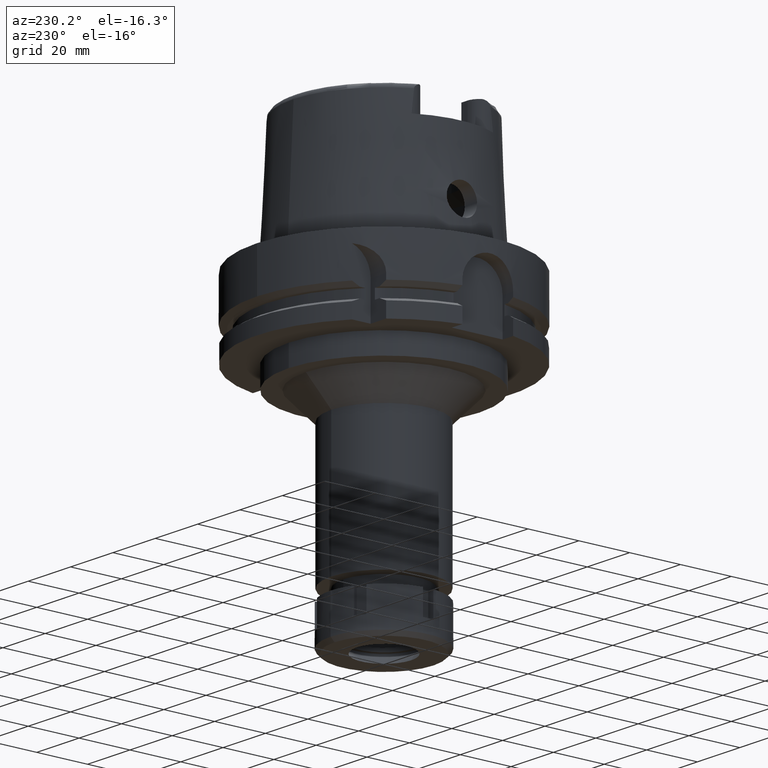
[diagram: clean part render]
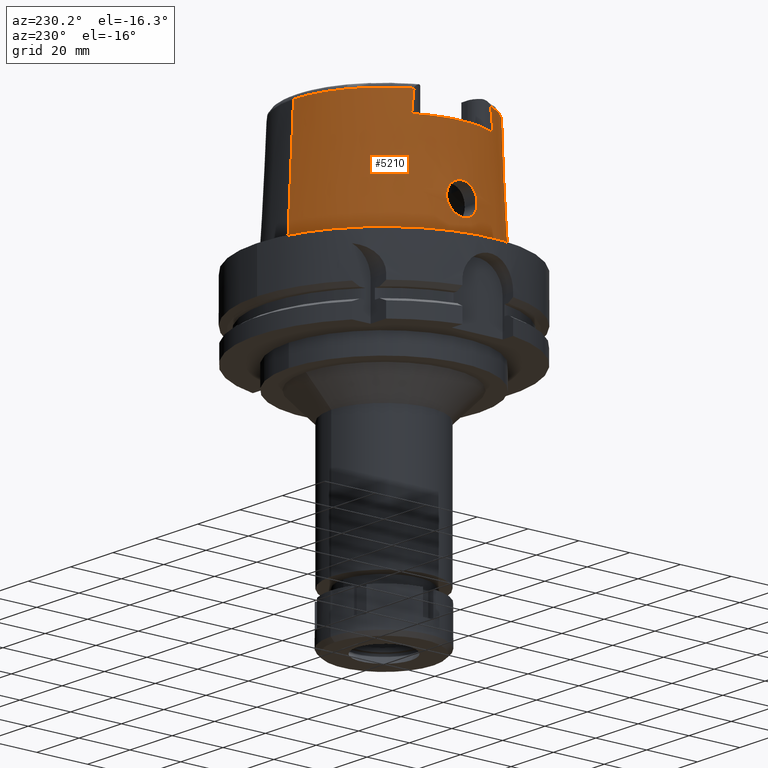
[diagram: same view with one face highlighted and labeled with its STEP entity id]
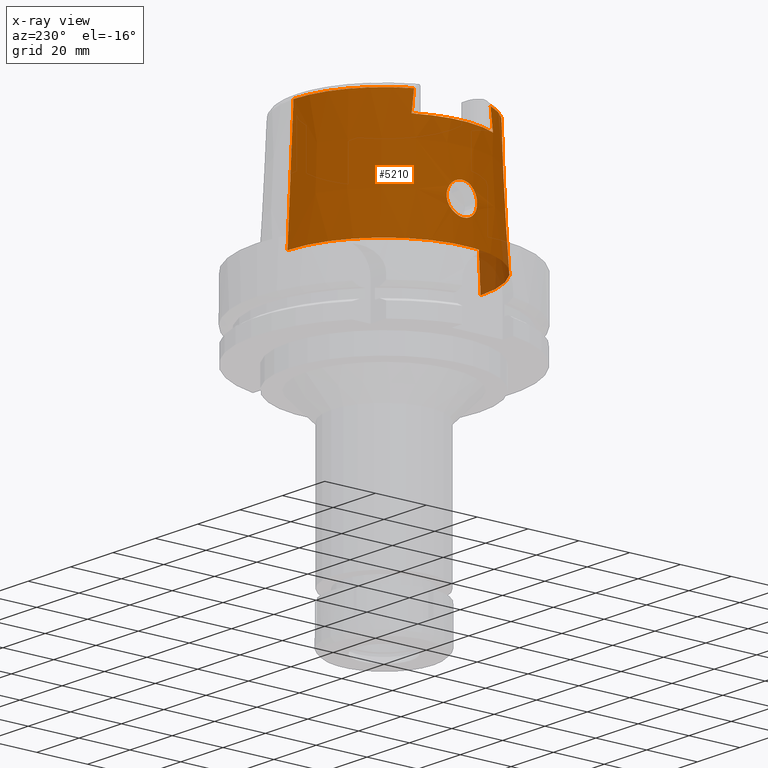
[diagram: x-ray of the same camera — body ghosted, the highlighted face saturated]
A machine part, auxiliary view. The second image highlights one B-rep face of the part: STEP entity #5210.
The next image is the same camera in x-ray: the body ghosted, the highlighted face saturated — about 4% of this face is hidden behind the body in this view.
In plain terms, the highlighted conical surface has half-angle 2.862 deg.
Its self-contained STEP definition (entity closure, byte-faithful):
#26 = CARTESIAN_POINT ( 'NONE',  ( -36.74213708003134116, 5.980920663482023336, 15.48771363178665084 ) ) ;
#28 = CARTESIAN_POINT ( 'NONE',  ( -36.82970815927703967, -3.673721649728069583, 19.74484231617102736 ) ) ;
#55 = CARTESIAN_POINT ( 'NONE',  ( -36.78115874342748981, 6.000634369571622884, 14.65218513828709312 ) ) ;
#58 = CARTESIAN_POINT ( 'NONE',  ( -36.94998175923000616, -0.7276035219041900870, 21.00000000000000000 ) ) ;
#84 = CARTESIAN_POINT ( 'NONE',  ( -36.75842919226395367, 5.999114145356266192, 15.10580503819791254 ) ) ;
#86 = CARTESIAN_POINT ( 'NONE',  ( -36.84417152423974784, -3.433603650977547606, 19.92136195242348506 ) ) ;
#112 = CARTESIAN_POINT ( 'NONE',  ( -36.72427171143733915, 5.401009150144898463, 17.61475386208541138 ) ) ;
#116 = CARTESIAN_POINT ( 'NONE',  ( -36.79206738448947078, -4.273194850286613722, 19.21188298289061436 ) ) ;
#148 = CARTESIAN_POINT ( 'NONE',  ( -36.82497142898998987, -3.751357537422829846, 19.68370323477672912 ) ) ;
#158 = CARTESIAN_POINT ( 'NONE',  ( 0.0000000000000000000, 0.0000000000000000000, 40.00000000000000000 ) ) ;
#172 = CARTESIAN_POINT ( 'NONE',  ( -0.002482252536761000127, -35.59494263424999616, 48.09987853799000135 ) ) ;
#210 = CARTESIAN_POINT ( 'NONE',  ( -32.25000000000000000, -15.68478779056467509, 42.78313258956232801 ) ) ;
#236 = CARTESIAN_POINT ( 'NONE',  ( -37.21678401652170720, 4.268596432465252555, 10.78345676034550138 ) ) ;
#368 = CARTESIAN_POINT ( 'NONE',  ( -37.55000165825001091, -0.3718891627302882141, 8.999999999999992895 ) ) ;
#396 = CARTESIAN_POINT ( 'NONE',  ( 1.065814103639999922E-14, -35.59494289391000166, 48.09987853799000135 ) ) ;
#398 = CARTESIAN_POINT ( 'NONE',  ( -36.90246391374932244, 2.270970271664929818, 20.55362381926235216 ) ) ;
#411 = CARTESIAN_POINT ( 'NONE',  ( -32.24999876011999334, -15.99794043148000000, 40.00000000000000000 ) ) ;
#425 = CARTESIAN_POINT ( 'NONE',  ( -36.91472616955542918, 1.953232796312508235, 20.67483732268593499 ) ) ;
#427 = CARTESIAN_POINT ( 'NONE',  ( -37.00698066079431214, -5.324877644454943493, 12.23314430673175046 ) ) ;
#442 = AXIS2_PLACEMENT_3D ( 'NONE', #2439, #1375, #3844 ) ;
#457 = CARTESIAN_POINT ( 'NONE',  ( -36.90702374694936339, 5.697836500260557102, 13.11707736151904768 ) ) ;
#461 = CARTESIAN_POINT ( 'NONE',  ( -37.23677011211478316, -4.145975722278929965, 10.66267860536039969 ) ) ;
#485 = CARTESIAN_POINT ( 'NONE',  ( -36.71608518142718935, 5.811444754284602610, 16.54267624456165464 ) ) ;
#513 = CARTESIAN_POINT ( 'NONE',  ( -37.03006260690557383, 5.228554669404830157, 12.05491327019708159 ) ) ;
#546 = CARTESIAN_POINT ( 'NONE',  ( -36.80179043546230133, 4.126922292612424492, 19.35577222741581238 ) ) ;
#549 = CARTESIAN_POINT ( 'NONE',  ( -36.86765356401599547, -3.023680857221861640, 20.18621613375399093 ) ) ;
#573 = CARTESIAN_POINT ( 'NONE',  ( -36.71926543743013127, 5.538662483580732321, 17.30724417046759456 ) ) ;
#576 = CARTESIAN_POINT ( 'NONE',  ( -36.76536378192928112, -5.999953328923798956, 14.96645035581262562 ) ) ;
#607 = CARTESIAN_POINT ( 'NONE',  ( -36.71847940336495952, -5.566960655756823861, 17.23812973715742203 ) ) ;
#613 = VERTEX_POINT ( 'NONE', #396 ) ;
#625 = FACE_OUTER_BOUND ( 'NONE', #2305, .T. ) ;
#637 = EDGE_CURVE ( 'NONE', #2660, #3867, #5043, .T. ) ;
#710 = B_SPLINE_CURVE_WITH_KNOTS ( 'NONE', 3,
 ( #4632, #4147, #4052, #1264, #3139, #2240, #425, #2731, #4994, #4599, #398, #4115, #2271, #1779, #6014, #1502, #5609, #1936, #2828, #4691, #2926, #3827, #5671, #2859, #5272, #1471, #2364, #546, #2450, #1072, #3346, #4318, #4235, #5730, #3374, #5154, #4290, #112, #2888, #2422, #4660, #3796, #4262, #573, #1011, #485, #956, #3858, #26, #1903, #5213, #84, #1532, #5239, #55, #1992, #1959, #3406, #4747, #457, #2333, #4204, #2393, #5643, #1045, #4779, #1416, #5522, #3288, #5701, #513, #1871, #3739, #3767, #1446, #3316, #5183, #4717, #985, #2518, #4872, #2546, #3985, #5854, #236, #1591, #1649, #2953, #4411, #4924, #1622, #2602, #2147, #1138, #4440, #2117, #3045, #4471, #2055, #3527, #2984 ),
 .UNSPECIFIED., .F., .F.,
 ( 4, 2, 2, 1, 1, 1, 1, 2, 2, 2, 2, 1, 1, 2, 2, 2, 1, 1, 1, 2, 2, 2, 2, 2, 1, 1, 2, 2, 2, 2, 1, 1, 2, 2, 2, 2, 2, 1, 1, 1, 2, 2, 2, 2, 1, 1, 2, 2, 2, 1, 1, 1, 2, 2, 2, 2, 2, 1, 1, 2, 2, 4 ),
 ( 0.0000000000000000000, 0.06249999999997109257, 0.09374999999995664579, 0.1093749999999494293, 0.1171874999999457656, 0.1210937499999439892, 0.1230468749999431982, 0.1240234374999429345, 0.1249999999999426570, 0.1562499999999350520, 0.1718749999999311384, 0.1796874999999293065, 0.1835937499999283629, 0.1855468749999278910, 0.1874999999999274192, 0.2187499999999206746, 0.2343749999999173161, 0.2421874999999158173, 0.2460937499999149847, 0.2480468749999147626, 0.2499999999999145128, 0.3124999999999144573, 0.3437499999999146794, 0.3593749999999145128, 0.3671874999999141242, 0.3710937499999139022, 0.3730468749999135691, 0.3749999999999131806, 0.4374999999999096278, 0.4687499999999077960, 0.4843749999999069078, 0.4921874999999066302, 0.4960937499999065192, 0.4999999999999064082, 0.5624999999999062972, 0.5937499999999060751, 0.6093749999999059641, 0.6171874999999059641, 0.6210937499999059641, 0.6230468749999060751, 0.6240234374999061862, 0.6249999999999062972, 0.6562499999999140687, 0.6718749999999179545, 0.6796874999999198419, 0.6835937499999208411, 0.6855468749999212852, 0.6874999999999217293, 0.7187499999999285016, 0.7343749999999317213, 0.7421874999999332756, 0.7460937499999341638, 0.7480468749999348299, 0.7499999999999353850, 0.8124999999999530376, 0.8437499999999618083, 0.8593749999999661382, 0.8671874999999682476, 0.8710937499999693578, 0.8730468749999698019, 0.8749999999999702460, 1.000000000000000000 ),
 .UNSPECIFIED. ) ;
#785 = CARTESIAN_POINT ( 'NONE',  ( -37.55000165825000380, 1.571614468376999917E-13, 9.000000000000000000 ) ) ;
#798 = CARTESIAN_POINT ( 'NONE',  ( -36.97177941768389076, -5.466384430734391842, 12.52551706219573902 ) ) ;
#835 = CARTESIAN_POINT ( 'NONE',  ( -37.45921998432961431, -2.267056700744098929, 9.444779204203612721 ) ) ;
#857 = ORIENTED_EDGE ( 'NONE', *, *, #4468, .F. ) ;
#859 = CARTESIAN_POINT ( 'NONE',  ( -32.25000000000000000, 15.37357338405396945, 45.48332195248026721 ) ) ;
#866 = CARTESIAN_POINT ( 'NONE',  ( -36.99058026714206449, -5.392667338631739860, 12.36624210003268587 ) ) ;
#894 = CARTESIAN_POINT ( 'NONE',  ( -37.22837700063030297, -4.198151100844063954, 10.71332522440694923 ) ) ;
#956 = CARTESIAN_POINT ( 'NONE',  ( -36.72707763824831062, 5.924706287517218506, 15.96749182868030559 ) ) ;
#960 = CARTESIAN_POINT ( 'NONE',  ( -36.71806943930015166, -5.583253525890961910, 17.19735773689056302 ) ) ;
#985 = CARTESIAN_POINT ( 'NONE',  ( -37.12650545951193237, 4.772862932131251235, 11.35873750122546788 ) ) ;
#989 = CARTESIAN_POINT ( 'NONE',  ( -36.71879680598878792, -5.555159369107776968, 17.26721057519085889 ) ) ;
#1011 = CARTESIAN_POINT ( 'NONE',  ( -36.71465593797850602, 5.697253075833943470, 16.92428247189354096 ) ) ;
#1013 = CARTESIAN_POINT ( 'NONE',  ( -36.72234695110327607, -5.429177298976620492, 17.57408257592915390 ) ) ;
#1045 = CARTESIAN_POINT ( 'NONE',  ( -36.94613635840509858, 5.562259926149883960, 12.75026490663161560 ) ) ;
#1048 = CARTESIAN_POINT ( 'NONE',  ( -36.76647508222163196, -5.999791398515839980, 14.94506806261689924 ) ) ;
#1072 = CARTESIAN_POINT ( 'NONE',  ( -36.79592132201925381, 4.215132023908788383, 19.26998986122860558 ) ) ;
#1074 = CARTESIAN_POINT ( 'NONE',  ( -36.73131779816827702, -5.964931939408380401, 15.75672676679908868 ) ) ;
#1138 = CARTESIAN_POINT ( 'NONE',  ( -37.44568971155850079, 2.428529047925400253, 9.513146786268443122 ) ) ;
#1170 = ORIENTED_EDGE ( 'NONE', *, *, #637, .T. ) ;
#1198 = CARTESIAN_POINT ( 'NONE',  ( -32.24999876011999334, -15.99794043148000000, 40.00000000000000000 ) ) ;
#1229 = CARTESIAN_POINT ( 'NONE',  ( 0.0000000000000000000, 0.0000000000000000000, 48.09987853799000135 ) ) ;
#1264 = CARTESIAN_POINT ( 'NONE',  ( -36.93380715178074070, 1.318767284406327622, 20.85656728309576025 ) ) ;
#1297 = DIRECTION ( 'NONE',  ( 0.0000000000000000000, 0.0000000000000000000, -1.000000000000000000 ) ) ;
#1328 = CARTESIAN_POINT ( 'NONE',  ( -37.06279015895903939, -5.081586767706613550, 11.80387918749896414 ) ) ;
#1360 = CARTESIAN_POINT ( 'NONE',  ( -37.27691987151867892, -3.883255638292381740, 10.42474725757036325 ) ) ;
#1369 = CARTESIAN_POINT ( 'NONE',  ( -32.25000136840999687, 15.06443227085999936, 48.09991931670000298 ) ) ;
#1375 = DIRECTION ( 'NONE',  ( 0.0000000000000000000, 0.0000000000000000000, 1.000000000000000000 ) ) ;
#1390 = CARTESIAN_POINT ( 'NONE',  ( -37.46074053503090795, -2.248188139057027968, 9.437114955106025604 ) ) ;
#1416 = CARTESIAN_POINT ( 'NONE',  ( -36.94833204979762087, 5.554272538584014818, 12.73062048098062071 ) ) ;
#1419 = CARTESIAN_POINT ( 'NONE',  ( -36.95848500219747024, -5.516798331183212056, 12.64085378710507257 ) ) ;
#1446 = CARTESIAN_POINT ( 'NONE',  ( -37.07375762289484555, 5.030618194363178475, 11.72997232595144190 ) ) ;
#1448 = CARTESIAN_POINT ( 'NONE',  ( -36.85852656653809589, -3.191919365770345518, 20.08423059641197383 ) ) ;
#1471 = CARTESIAN_POINT ( 'NONE',  ( -36.81702662342831189, 3.889211728386295697, 19.56987104263142641 ) ) ;
#1477 = CARTESIAN_POINT ( 'NONE',  ( -36.74862308198709115, -4.956056997960864408, 18.38757285394166985 ) ) ;
#1502 = CARTESIAN_POINT ( 'NONE',  ( -36.87485414132241601, 2.872868603610435834, 20.26843404570703200 ) ) ;
#1504 = CARTESIAN_POINT ( 'NONE',  ( -36.71645952759332943, -5.675355256123393310, 16.95135817563319591 ) ) ;
#1516 = CARTESIAN_POINT ( 'NONE',  ( -36.94998175923000616, 0.0000000000000000000, 21.00000000000000000 ) ) ;
#1532 = CARTESIAN_POINT ( 'NONE',  ( -36.76072782277740458, 5.999764244688070569, 15.05826013460559309 ) ) ;
#1537 = CARTESIAN_POINT ( 'NONE',  ( -36.82322159279420504, -5.928917285969003359, 14.05832086217997023 ) ) ;
#1591 = CARTESIAN_POINT ( 'NONE',  ( -37.21804406098829787, 4.261125445034912751, 10.77590154581866955 ) ) ;
#1618 = EDGE_CURVE ( 'NONE', #3867, #3950, #2564, .T. ) ;
#1622 = CARTESIAN_POINT ( 'NONE',  ( -37.42163608548830211, 2.690728687920960649, 9.636374340044181253 ) ) ;
#1649 = CARTESIAN_POINT ( 'NONE',  ( -37.27310248660137404, 3.933601523717860982, 10.44705200904945563 ) ) ;
#1690 = CIRCLE ( 'NONE', #5607, 35.99995025243999436 ) ;
#1695 = B_SPLINE_CURVE_WITH_KNOTS ( 'NONE', 3,
 ( #3203, #368, #3712, #5955, #4602, #5491, #3170, #5580, #2733, #1781, #1390, #3741, #835, #2764, #3260, #2242, #2707, #4576, #1360, #4665, #4118, #461, #1755, #894, #2679, #5552, #5088, #3140, #4634, #3233, #5521, #5061, #1328, #4997, #427, #866, #798, #4781, #1419, #4751, #4238, #5215, #1537, #5242, #3408, #4293, #5274, #4811, #3798, #1048, #576, #5703, #1074, #4720, #2928, #5646, #1504, #2957, #960, #607, #2367, #989, #2831, #1013, #5673, #1477, #5186, #3349, #2893, #1963, #4264, #5157, #2028, #2455, #116, #4321, #2484, #148, #28, #5733, #86, #1448, #549, #1995, #4351, #4693, #2395, #2424, #3860, #3830, #58, #5611 ),
 .UNSPECIFIED., .F., .F.,
 ( 4, 2, 2, 1, 1, 1, 1, 2, 2, 2, 2, 2, 1, 1, 1, 2, 2, 2, 2, 2, 2, 1, 1, 2, 2, 2, 2, 2, 1, 2, 2, 2, 2, 1, 1, 1, 1, 2, 2, 2, 2, 2, 1, 1, 2, 2, 2, 2, 2, 2, 1, 1, 2, 2, 4 ),
 ( 0.0000000000000000000, 0.06249999999999257538, 0.09374999999998887001, 0.1093749999999869826, 0.1171874999999860112, 0.1210937499999855116, 0.1230468749999853312, 0.1240234374999852202, 0.1249999999999851230, 0.1874999999999879818, 0.2187499999999894251, 0.2343749999999901745, 0.2421874999999905909, 0.2460937499999907574, 0.2480468749999908129, 0.2490234374999909517, 0.2499999999999910627, 0.2812500000000001110, 0.2968750000000046629, 0.3125000000000091593, 0.3437500000000182632, 0.3593750000000227041, 0.3671875000000250355, 0.3710937500000263123, 0.3750000000000275335, 0.4375000000000488498, 0.4687500000000596190, 0.4843750000000651146, 0.4921875000000679456, 0.4960937500000693334, 0.5000000000000707212, 0.5625000000000939249, 0.5937500000001055822, 0.6093750000001113554, 0.6171875000001145750, 0.6210937500001163514, 0.6230468750001172396, 0.6240234375001174616, 0.6250000000001176836, 0.6875000000000980327, 0.7187500000000882627, 0.7343750000000832667, 0.7421875000000810463, 0.7460937500000799361, 0.7480468750000793809, 0.7500000000000787148, 0.7812500000000688338, 0.7968750000000637268, 0.8125000000000587308, 0.8437500000000480727, 0.8593750000000428546, 0.8671875000000404121, 0.8710937500000391909, 0.8750000000000379696, 1.000000000000000000 ),
 .UNSPECIFIED. ) ;
#1698 = CARTESIAN_POINT ( 'NONE',  ( 0.0000000000000000000, 38.00001658251999714, 1.023181539494999863E-12 ) ) ;
#1753 = DIRECTION ( 'NONE',  ( -0.9060276961631030801, 0.4232183996300014628, 0.0000000000000000000 ) ) ;
#1755 = CARTESIAN_POINT ( 'NONE',  ( -37.23090673957359797, -4.182514433654384689, 10.69803016623830771 ) ) ;
#1779 = CARTESIAN_POINT ( 'NONE',  ( -36.89521753929933112, 2.446011855748357888, 20.48120491926509601 ) ) ;
#1781 = CARTESIAN_POINT ( 'NONE',  ( -37.46214807647906753, -2.230613678740583250, 9.430023174824837540 ) ) ;
#1871 = CARTESIAN_POINT ( 'NONE',  ( -37.04826500278484502, 5.147778768191037635, 11.91727333387864896 ) ) ;
#1903 = CARTESIAN_POINT ( 'NONE',  ( -36.74765037912664667, 5.991458756198568381, 15.34410716257145424 ) ) ;
#1936 = CARTESIAN_POINT ( 'NONE',  ( -36.86288654082656535, 3.101924623793958169, 20.13623923886805045 ) ) ;
#1959 = CARTESIAN_POINT ( 'NONE',  ( -36.85211507429026057, 5.861065642222700767, 13.70152380353212429 ) ) ;
#1963 = CARTESIAN_POINT ( 'NONE',  ( -36.77996768913134673, -4.459867724273532730, 19.01405825153331008 ) ) ;
#1992 = CARTESIAN_POINT ( 'NONE',  ( -36.80567151133607240, 5.969104826479818549, 14.27728902634337871 ) ) ;
#1995 = CARTESIAN_POINT ( 'NONE',  ( -36.88067951415136037, -2.761362253195626781, 20.32773398685701949 ) ) ;
#2010 = DIRECTION ( 'NONE',  ( -5.154182075159067383E-05, 0.04993927430816067631, -0.9987522546783135224 ) ) ;
#2028 = CARTESIAN_POINT ( 'NONE',  ( -36.79001039947167584, -4.304835402697857027, 19.17954527391021813 ) ) ;
#2055 = CARTESIAN_POINT ( 'NONE',  ( -37.51912319094906678, 1.534347120026018141, 9.142235612153992719 ) ) ;
#2072 = EDGE_CURVE ( 'NONE', #3653, #2675, #1690, .T. ) ;
#2079 = VECTOR ( 'NONE', #3426, 1000.000000000000227 ) ;
#2117 = CARTESIAN_POINT ( 'NONE',  ( -37.45410411989075783, 2.329149396799384597, 9.470517360948258911 ) ) ;
#2147 = CARTESIAN_POINT ( 'NONE',  ( -37.44036248521585009, 2.488670637046051848, 9.540284758766304662 ) ) ;
#2240 = CARTESIAN_POINT ( 'NONE',  ( -36.91965437026263430, 1.806480541533576512, 20.72250036075014634 ) ) ;
#2242 = CARTESIAN_POINT ( 'NONE',  ( -37.34545887985616730, -3.377054693507359318, 10.03675207813765979 ) ) ;
#2271 = CARTESIAN_POINT ( 'NONE',  ( -36.90165294930666562, 2.290668940777149665, 20.54552628360226052 ) ) ;
#2305 = EDGE_LOOP ( 'NONE', ( #3071, #1170, #2547, #5634, #4167, #3172, #4377, #3187 ) ) ;
#2308 = AXIS2_PLACEMENT_3D ( 'NONE', #6065, #4737, #2350 ) ;
#2333 = CARTESIAN_POINT ( 'NONE',  ( -36.92226254184715373, 5.646522235184992411, 12.97035193712977197 ) ) ;
#2350 = DIRECTION ( 'NONE',  ( 0.0000000000000000000, -1.000000000000000000, 0.0000000000000000000 ) ) ;
#2364 = CARTESIAN_POINT ( 'NONE',  ( -36.81000017271533409, 4.000898972940268195, 19.47322790999004383 ) ) ;
#2367 = CARTESIAN_POINT ( 'NONE',  ( -36.71866811050522017, -5.559891426319853558, 17.25558124127200443 ) ) ;
#2393 = CARTESIAN_POINT ( 'NONE',  ( -36.93936329012350939, 5.586693184667166356, 12.81137741697505561 ) ) ;
#2395 = CARTESIAN_POINT ( 'NONE',  ( -36.89712677444816080, -2.398165150328999573, 20.49994954947837300 ) ) ;
#2422 = CARTESIAN_POINT ( 'NONE',  ( -36.72102410496681557, 5.484242177747206348, 17.43441782935495965 ) ) ;
#2424 = CARTESIAN_POINT ( 'NONE',  ( -36.89910394019696582, -2.351659802671087540, 20.51999432133411716 ) ) ;
#2439 = CARTESIAN_POINT ( 'NONE',  ( 0.0000000000000000000, 0.0000000000000000000, 1.023181539494999863E-12 ) ) ;
#2450 = CARTESIAN_POINT ( 'NONE',  ( -36.79768251398044754, 4.188835919582126976, 19.29589494911641623 ) ) ;
#2455 = CARTESIAN_POINT ( 'NONE',  ( -36.79131498553528701, -4.284763963187011804, 19.20011956029349420 ) ) ;
#2484 = CARTESIAN_POINT ( 'NONE',  ( -36.81089043437773967, -3.979595105193344473, 19.49464795716744447 ) ) ;
#2518 = CARTESIAN_POINT ( 'NONE',  ( -37.16134170527265468, 4.585504208506023360, 11.12922431000617962 ) ) ;
#2546 = CARTESIAN_POINT ( 'NONE',  ( -37.19923292998166886, 4.371638877399492529, 10.88988554076843052 ) ) ;
#2547 = ORIENTED_EDGE ( 'NONE', *, *, #1618, .T. ) ;
#2564 = LINE ( 'NONE', #4333, #3298 ) ;
#2602 = CARTESIAN_POINT ( 'NONE',  ( -37.42938503966876596, 2.609482079713338898, 9.596437147966748071 ) ) ;
#2660 = VERTEX_POINT ( 'NONE', #1369 ) ;
#2675 = VERTEX_POINT ( 'NONE', #4355 ) ;
#2679 = CARTESIAN_POINT ( 'NONE',  ( -37.22668676022431811, -4.208570270472985264, 10.72355409531292025 ) ) ;
#2707 = CARTESIAN_POINT ( 'NONE',  ( -37.32405169016085722, -3.545458941573749634, 10.15480193131925191 ) ) ;
#2731 = CARTESIAN_POINT ( 'NONE',  ( -36.90831319043002878, 2.124409086131613833, 20.61174563227799439 ) ) ;
#2733 = CARTESIAN_POINT ( 'NONE',  ( -37.46539339602350793, -2.189567561845902510, 9.413685638568191294 ) ) ;
#2764 = CARTESIAN_POINT ( 'NONE',  ( -37.43522507132681199, -2.562855269052522367, 9.565775918734312100 ) ) ;
#2828 = CARTESIAN_POINT ( 'NONE',  ( -36.85909534675823807, 3.172167758265809212, 20.09341281341699670 ) ) ;
#2831 = CARTESIAN_POINT ( 'NONE',  ( -36.71887644515832250, -5.552292536330343253, 17.27421908815856355 ) ) ;
#2859 = CARTESIAN_POINT ( 'NONE',  ( -36.84040625807504199, 3.503059450715749090, 19.87517500637374468 ) ) ;
#2888 = CARTESIAN_POINT ( 'NONE',  ( -36.72203940115641529, 5.457104329616732308, 17.49438804829725669 ) ) ;
#2893 = CARTESIAN_POINT ( 'NONE',  ( -36.77286751706097334, -4.570165826772733197, 18.88920549401498761 ) ) ;
#2909 = EDGE_CURVE ( 'NONE', #3685, #4923, #710, .T. ) ;
#2922 = B_SPLINE_CURVE_WITH_KNOTS ( 'NONE', 3,
 ( #1198, #210, #3467, #5391 ),
 .UNSPECIFIED., .F., .F.,
 ( 4, 4 ),
 ( 0.0000000000000000000, 1.000000000000000000 ),
 .UNSPECIFIED. ) ;
#2926 = CARTESIAN_POINT ( 'NONE',  ( -36.85245578580056502, 3.291379239472637774, 20.01667516327843543 ) ) ;
#2928 = CARTESIAN_POINT ( 'NONE',  ( -36.71772356593751141, -5.806511242207025525, 16.52438348768006904 ) ) ;
#2940 = DIRECTION ( 'NONE',  ( 0.0000000000000000000, -1.000000000000000000, 0.0000000000000000000 ) ) ;
#2942 = EDGE_CURVE ( 'NONE', #3653, #4909, #2922, .T. ) ;
#2953 = CARTESIAN_POINT ( 'NONE',  ( -37.31960196068958879, 3.599715197338668737, 10.18348878050270656 ) ) ;
#2957 = CARTESIAN_POINT ( 'NONE',  ( -36.71737092155365900, -5.615031271995241546, 17.11561201904546436 ) ) ;
#2984 = CARTESIAN_POINT ( 'NONE',  ( -37.55000165825000380, 1.571614468376999917E-13, 9.000000000000000000 ) ) ;
#3041 = LINE ( 'NONE', #172, #2079 ) ;
#3045 = CARTESIAN_POINT ( 'NONE',  ( -37.45574528164588912, 2.309354411066905310, 9.462220898927860446 ) ) ;
#3071 = ORIENTED_EDGE ( 'NONE', *, *, #5897, .F. ) ;
#3139 = CARTESIAN_POINT ( 'NONE',  ( -36.92875258695283947, 1.513458730394577234, 20.80955867293651806 ) ) ;
#3140 = CARTESIAN_POINT ( 'NONE',  ( -37.17910272638567903, -4.492517266282609611, 11.01802042201667930 ) ) ;
#3164 = EDGE_CURVE ( 'NONE', #613, #3539, #3041, .T. ) ;
#3170 = CARTESIAN_POINT ( 'NONE',  ( -37.48377488592331730, -1.942288517216233190, 9.321523430673265054 ) ) ;
#3172 = ORIENTED_EDGE ( 'NONE', *, *, #5070, .T. ) ;
#3187 = ORIENTED_EDGE ( 'NONE', *, *, #2072, .T. ) ;
#3203 = CARTESIAN_POINT ( 'NONE',  ( -37.55000165825000380, 1.571614468376999917E-13, 9.000000000000000000 ) ) ;
#3233 = CARTESIAN_POINT ( 'NONE',  ( -37.13270875439160790, -4.742370940834817361, 11.32309422934290133 ) ) ;
#3260 = CARTESIAN_POINT ( 'NONE',  ( -37.40392386327348362, -2.880953460754754669, 9.722366012671125546 ) ) ;
#3288 = CARTESIAN_POINT ( 'NONE',  ( -36.98564165150888527, 5.414376625352776529, 12.40705189659201935 ) ) ;
#3298 = VECTOR ( 'NONE', #2010, 1000.000000000000227 ) ;
#3307 = CONICAL_SURFACE ( 'NONE', #6048, 36.79747973821000073, 0.04996004983832824653 ) ;
#3316 = CARTESIAN_POINT ( 'NONE',  ( -37.07704877847563552, 5.015131555271890029, 11.70627021602903284 ) ) ;
#3346 = CARTESIAN_POINT ( 'NONE',  ( -36.79474704867105572, 4.232609471241222998, 19.25266604119527969 ) ) ;
#3349 = CARTESIAN_POINT ( 'NONE',  ( -36.76841115256122805, -4.639906166534255583, 18.80560553096219323 ) ) ;
#3374 = CARTESIAN_POINT ( 'NONE',  ( -36.73723531059630432, 5.138910993510313219, 18.10319557330759821 ) ) ;
#3406 = CARTESIAN_POINT ( 'NONE',  ( -36.86920866379021078, 5.814938421963117499, 13.50741653441596846 ) ) ;
#3408 = CARTESIAN_POINT ( 'NONE',  ( -36.79040363443451156, -5.982412805353677143, 14.53134241299937912 ) ) ;
#3426 = DIRECTION ( 'NONE',  ( 5.154182075151068004E-05, -0.04993927430816067631, -0.9987522546783135224 ) ) ;
#3467 = CARTESIAN_POINT ( 'NONE',  ( -32.25000000000000000, -15.37363593576801257, 45.48304329635233501 ) ) ;
#3527 = CARTESIAN_POINT ( 'NONE',  ( -37.55000165825000380, 0.7490232804582529491, 9.000000000000017764 ) ) ;
#3539 = VERTEX_POINT ( 'NONE', #4249 ) ;
#3576 = AXIS2_PLACEMENT_3D ( 'NONE', #1229, #1297, #1753 ) ;
#3653 = VERTEX_POINT ( 'NONE', #411 ) ;
#3685 = VERTEX_POINT ( 'NONE', #1516 ) ;
#3712 = CARTESIAN_POINT ( 'NONE',  ( -37.54240575604766406, -0.7521153722526756624, 9.034676255605903705 ) ) ;
#3739 = CARTESIAN_POINT ( 'NONE',  ( -37.05758684895381094, 5.105731772488886655, 11.84772253554631583 ) ) ;
#3741 = CARTESIAN_POINT ( 'NONE',  ( -37.45979846512887690, -2.259900654932927466, 9.441862815552726218 ) ) ;
#3767 = CARTESIAN_POINT ( 'NONE',  ( -37.06884847055233934, 5.053621854395571766, 11.76545393853709598 ) ) ;
#3796 = CARTESIAN_POINT ( 'NONE',  ( -36.71962191413464893, 5.526942422403049449, 17.33517078317796489 ) ) ;
#3798 = CARTESIAN_POINT ( 'NONE',  ( -36.76887443617886220, -5.999204695319567904, 14.89971357467235613 ) ) ;
#3827 = CARTESIAN_POINT ( 'NONE',  ( -36.85109903874094783, 3.315399909343513585, 20.00083297391656956 ) ) ;
#3830 = CARTESIAN_POINT ( 'NONE',  ( -36.93367461911356742, -1.520528897212044539, 20.86597660907410656 ) ) ;
#3844 = DIRECTION ( 'NONE',  ( 0.0000000000000000000, 1.000000000000000000, 0.0000000000000000000 ) ) ;
#3858 = CARTESIAN_POINT ( 'NONE',  ( -36.73221655579671108, 5.952817312800082306, 15.77528853881286430 ) ) ;
#3860 = CARTESIAN_POINT ( 'NONE',  ( -36.90004114262342938, -2.329381205907544050, 20.52943830534962544 ) ) ;
#3867 = VERTEX_POINT ( 'NONE', #4456 ) ;
#3950 = VERTEX_POINT ( 'NONE', #1698 ) ;
#3985 = CARTESIAN_POINT ( 'NONE',  ( -37.20946705602678151, 4.311801555755056192, 10.82753860088256559 ) ) ;
#4052 = CARTESIAN_POINT ( 'NONE',  ( -36.94593810736768091, 0.7403763698833654150, 20.96707238085064517 ) ) ;
#4115 = CARTESIAN_POINT ( 'NONE',  ( -36.90196240614530154, 2.283174416767193460, 20.54861767319427202 ) ) ;
#4118 = CARTESIAN_POINT ( 'NONE',  ( -37.24833945055777917, -4.072703394236847352, 10.59331636203001814 ) ) ;
#4147 = CARTESIAN_POINT ( 'NONE',  ( -36.94998175923001327, 0.3625556862184972640, 21.00000000000000000 ) ) ;
#4167 = ORIENTED_EDGE ( 'NONE', *, *, #3164, .F. ) ;
#4204 = CARTESIAN_POINT ( 'NONE',  ( -36.93003310196935729, 5.619791131382732452, 12.89696802786769858 ) ) ;
#4230 = CARTESIAN_POINT ( 'NONE',  ( -32.25000000000000000, 15.68473281738396885, 42.78334884691359719 ) ) ;
#4235 = CARTESIAN_POINT ( 'NONE',  ( -36.77255812651438305, 4.560787639215094558, 18.92339893918521199 ) ) ;
#4238 = CARTESIAN_POINT ( 'NONE',  ( -36.90855853750419868, -5.701107916578003199, 13.08167443259730156 ) ) ;
#4249 = CARTESIAN_POINT ( 'NONE',  ( 0.0000000000000000000, -38.00001658251999714, 6.892264536873000076E-13 ) ) ;
#4262 = CARTESIAN_POINT ( 'NONE',  ( -36.71936753119718588, 5.535258965271261822, 17.31538837229319228 ) ) ;
#4264 = CARTESIAN_POINT ( 'NONE',  ( -36.78362168149674005, -4.403297247335943077, 19.07634702706458540 ) ) ;
#4290 = CARTESIAN_POINT ( 'NONE',  ( -36.72602887549364681, 5.361186024592570654, 17.69556604211973294 ) ) ;
#4293 = CARTESIAN_POINT ( 'NONE',  ( -36.78457883131221706, -5.988946519200009533, 14.62445446583535258 ) ) ;
#4318 = CARTESIAN_POINT ( 'NONE',  ( -36.79422925822261448, 4.240294919274228747, 19.24500745552995795 ) ) ;
#4321 = CARTESIAN_POINT ( 'NONE',  ( -36.80167536630138159, -4.125522625627466411, 19.36108937374791950 ) ) ;
#4333 = CARTESIAN_POINT ( 'NONE',  ( 0.002482252536764999965, 35.59494263424999616, 48.09987853799000135 ) ) ;
#4351 = CARTESIAN_POINT ( 'NONE',  ( -36.88702635269868324, -2.627716237125233167, 20.39562777863725174 ) ) ;
#4355 = CARTESIAN_POINT ( 'NONE',  ( -32.24999999999000266, 15.99793480980999938, 40.00000000000000000 ) ) ;
#4364 = CIRCLE ( 'NONE', #442, 38.00001658251999714 ) ;
#4377 = ORIENTED_EDGE ( 'NONE', *, *, #2942, .F. ) ;
#4401 = DIRECTION ( 'NONE',  ( 0.0000000000000000000, 0.0000000000000000000, -1.000000000000000000 ) ) ;
#4411 = CARTESIAN_POINT ( 'NONE',  ( -37.37901540024436997, 3.101672283352398196, 9.860076702512275304 ) ) ;
#4440 = CARTESIAN_POINT ( 'NONE',  ( -37.45162219020419769, 2.358881670925441654, 9.483072389192008345 ) ) ;
#4456 = CARTESIAN_POINT ( 'NONE',  ( 0.0000000000000000000, 35.59494289391000166, 48.09987853799000135 ) ) ;
#4468 = EDGE_CURVE ( 'NONE', #4923, #3685, #1695, .T. ) ;
#4471 = CARTESIAN_POINT ( 'NONE',  ( -37.45640130424399672, 2.301400346840209554, 9.458906295876481352 ) ) ;
#4498 = DIRECTION ( 'NONE',  ( -0.8958345712659759874, -0.4443876921390880197, 0.0000000000000000000 ) ) ;
#4566 = CARTESIAN_POINT ( 'NONE',  ( -32.25000136840999687, 15.06443227085999936, 48.09991931670000298 ) ) ;
#4576 = CARTESIAN_POINT ( 'NONE',  ( -37.28906261278351053, -3.798730252022853637, 10.35444251675327543 ) ) ;
#4599 = CARTESIAN_POINT ( 'NONE',  ( -36.90321321349627226, 2.252661840914863323, 20.56109868250977257 ) ) ;
#4602 = CARTESIAN_POINT ( 'NONE',  ( -37.51012317168771659, -1.514943794002670652, 9.191020326267159035 ) ) ;
#4621 = CARTESIAN_POINT ( 'NONE',  ( -32.24999491821000674, -15.06448486709000001, 48.09973212036999968 ) ) ;
#4632 = CARTESIAN_POINT ( 'NONE',  ( -36.94998175923000616, 0.0000000000000000000, 21.00000000000000000 ) ) ;
#4634 = CARTESIAN_POINT ( 'NONE',  ( -37.14433642817245840, -4.681310381858185821, 11.24566233597220588 ) ) ;
#4660 = CARTESIAN_POINT ( 'NONE',  ( -36.72001609590969196, 5.514360062299606291, 17.36487741629870385 ) ) ;
#4665 = CARTESIAN_POINT ( 'NONE',  ( -37.25798618641285032, -4.009624599192505023, 10.53613804246701768 ) ) ;
#4691 = CARTESIAN_POINT ( 'NONE',  ( -36.85447695403446744, 3.255432301153368346, 20.04019703281360520 ) ) ;
#4693 = CARTESIAN_POINT ( 'NONE',  ( -36.89414025875990433, -2.467637901102249565, 20.46948173887945188 ) ) ;
#4717 = CARTESIAN_POINT ( 'NONE',  ( -37.10338475675614944, 4.890206937550373389, 11.51791883176533560 ) ) ;
#4720 = CARTESIAN_POINT ( 'NONE',  ( -36.72001208620641677, -5.853357263403649924, 16.33284314804887671 ) ) ;
#4737 = DIRECTION ( 'NONE',  ( 0.0000000000000000000, 0.0000000000000000000, -1.000000000000000000 ) ) ;
#4747 = CARTESIAN_POINT ( 'NONE',  ( -36.89726765081296378, 5.729181559971561200, 13.21483692170119006 ) ) ;
#4751 = CARTESIAN_POINT ( 'NONE',  ( -36.95599065486727142, -5.526107294351098709, 12.66272563228284476 ) ) ;
#4779 = CARTESIAN_POINT ( 'NONE',  ( -36.94750073465072404, 5.557301832608976255, 12.73804513359194779 ) ) ;
#4781 = CARTESIAN_POINT ( 'NONE',  ( -36.96379325573101227, -5.496792939060497041, 12.59460978927388553 ) ) ;
#4811 = CARTESIAN_POINT ( 'NONE',  ( -36.77255042425528586, -5.997936395951239064, 14.83149193387702525 ) ) ;
#4872 = CARTESIAN_POINT ( 'NONE',  ( -37.17879862605980179, 4.488990976349823470, 11.01678110965253410 ) ) ;
#4909 = VERTEX_POINT ( 'NONE', #4621 ) ;
#4914 = FACE_BOUND ( 'NONE', #5656, .T. ) ;
#4923 = VERTEX_POINT ( 'NONE', #785 ) ;
#4924 = CARTESIAN_POINT ( 'NONE',  ( -37.39709725149969444, 2.936031393921705313, 9.764188312930301095 ) ) ;
#4994 = CARTESIAN_POINT ( 'NONE',  ( -36.90494084795893315, 2.209927661161439350, 20.57829995913846233 ) ) ;
#4996 = EDGE_CURVE ( 'NONE', #3950, #3539, #4364, .T. ) ;
#4997 = CARTESIAN_POINT ( 'NONE',  ( -37.04016195454011040, -5.183523363078839097, 11.97174390654230969 ) ) ;
#5012 = B_SPLINE_CURVE_WITH_KNOTS ( 'NONE', 3,
 ( #4566, #859, #4230, #6042 ),
 .UNSPECIFIED., .F., .F.,
 ( 4, 4 ),
 ( 0.0000000000000000000, 1.000000000000000000 ),
 .UNSPECIFIED. ) ;
#5043 = CIRCLE ( 'NONE', #3576, 35.59494289391000166 ) ;
#5061 = CARTESIAN_POINT ( 'NONE',  ( -37.09749347847002809, -4.918603605561778558, 11.56244757817237279 ) ) ;
#5070 = EDGE_CURVE ( 'NONE', #613, #4909, #5258, .T. ) ;
#5088 = CARTESIAN_POINT ( 'NONE',  ( -37.20212462768871120, -4.359168955854613614, 10.87246819974013690 ) ) ;
#5154 = CARTESIAN_POINT ( 'NONE',  ( -36.73210723926960242, 5.233999852566225464, 17.93918578082426407 ) ) ;
#5157 = CARTESIAN_POINT ( 'NONE',  ( -36.78806650866751227, -4.334758566401664126, 19.14865061804318458 ) ) ;
#5183 = CARTESIAN_POINT ( 'NONE',  ( -37.07892893748066143, 5.006243397648430182, 11.69278373270884153 ) ) ;
#5186 = CARTESIAN_POINT ( 'NONE',  ( -36.75587330970353150, -4.838281091793987798, 18.55478365627491044 ) ) ;
#5210 = ADVANCED_FACE ( 'NONE', ( #625, #4914 ), #3307, .T. ) ;
#5213 = CARTESIAN_POINT ( 'NONE',  ( -36.75505037611603854, 5.997714223878809037, 15.17718174360629035 ) ) ;
#5215 = CARTESIAN_POINT ( 'NONE',  ( -36.87048355402207278, -5.817089653323771259, 13.47791357174976312 ) ) ;
#5239 = CARTESIAN_POINT ( 'NONE',  ( -36.76196663538093645, 5.999950069725190183, 15.03318821687727258 ) ) ;
#5242 = CARTESIAN_POINT ( 'NONE',  ( -36.80910935805079731, -5.955870818779180453, 14.24952387108832497 ) ) ;
#5258 = CIRCLE ( 'NONE', #2308, 35.59494289391000166 ) ;
#5272 = CARTESIAN_POINT ( 'NONE',  ( -36.83106556894433226, 3.661217904143168944, 19.75754561894854788 ) ) ;
#5274 = CARTESIAN_POINT ( 'NONE',  ( -36.77645728375348710, -5.995483638971363938, 14.76271399252394012 ) ) ;
#5279 = ORIENTED_EDGE ( 'NONE', *, *, #2909, .F. ) ;
#5289 = CARTESIAN_POINT ( 'NONE',  ( 0.0000000000000000000, 0.0000000000000000000, 24.04993926899999934 ) ) ;
#5391 = CARTESIAN_POINT ( 'NONE',  ( -32.24999491821000674, -15.06448486709000001, 48.09973212036999968 ) ) ;
#5491 = CARTESIAN_POINT ( 'NONE',  ( -37.49303239173244862, -1.800046553818538397, 9.275521220993729443 ) ) ;
#5521 = CARTESIAN_POINT ( 'NONE',  ( -37.10937559141032693, -4.860602804293138846, 11.48087247095766017 ) ) ;
#5522 = CARTESIAN_POINT ( 'NONE',  ( -36.96607895256281751, 5.489479155826716195, 12.57242985024268833 ) ) ;
#5552 = CARTESIAN_POINT ( 'NONE',  ( -37.22570546910461786, -4.214600560176562816, 10.72949884910129192 ) ) ;
#5580 = CARTESIAN_POINT ( 'NONE',  ( -37.47172825977428090, -2.107325236470780627, 9.381849362928935676 ) ) ;
#5607 = AXIS2_PLACEMENT_3D ( 'NONE', #158, #5776, #4498 ) ;
#5609 = CARTESIAN_POINT ( 'NONE',  ( -36.87024569127481755, 2.963132536025136599, 20.21837188558825460 ) ) ;
#5611 = CARTESIAN_POINT ( 'NONE',  ( -36.94998175923000616, 0.0000000000000000000, 21.00000000000000000 ) ) ;
#5634 = ORIENTED_EDGE ( 'NONE', *, *, #4996, .T. ) ;
#5643 = CARTESIAN_POINT ( 'NONE',  ( -36.94409451787019805, 5.569662452407319719, 12.76859598343487612 ) ) ;
#5646 = CARTESIAN_POINT ( 'NONE',  ( -36.71651086111180717, -5.721525143760280763, 16.80941412760207143 ) ) ;
#5656 = EDGE_LOOP ( 'NONE', ( #5279, #857 ) ) ;
#5671 = CARTESIAN_POINT ( 'NONE',  ( -36.85031096940397077, 3.329281285268632207, 19.99159669019208962 ) ) ;
#5673 = CARTESIAN_POINT ( 'NONE',  ( -36.73019740140392742, -5.270801275200358127, 17.89331248719243206 ) ) ;
#5701 = CARTESIAN_POINT ( 'NONE',  ( -37.01851607159768776, 5.277981497366998731, 12.14471983152528267 ) ) ;
#5703 = CARTESIAN_POINT ( 'NONE',  ( -36.74477514101648978, -6.000611544146608800, 15.37072393476569943 ) ) ;
#5730 = CARTESIAN_POINT ( 'NONE',  ( -36.75584701100459029, 4.819506952249530407, 18.59517295813238036 ) ) ;
#5733 = CARTESIAN_POINT ( 'NONE',  ( -36.83926775068368897, -3.515525827420490135, 19.86321267494517429 ) ) ;
#5776 = DIRECTION ( 'NONE',  ( 0.0000000000000000000, 0.0000000000000000000, -1.000000000000000000 ) ) ;
#5854 = CARTESIAN_POINT ( 'NONE',  ( -37.21385674734990801, 4.285911073306091446, 10.80105743468151402 ) ) ;
#5897 = EDGE_CURVE ( 'NONE', #2660, #2675, #5012, .T. ) ;
#5955 = CARTESIAN_POINT ( 'NONE',  ( -37.51961804944063772, -1.324056234911218821, 9.144697589880996347 ) ) ;
#6014 = CARTESIAN_POINT ( 'NONE',  ( -36.88778654071151664, 2.610208435456867093, 20.40609814503691055 ) ) ;
#6042 = CARTESIAN_POINT ( 'NONE',  ( -32.24999999999000266, 15.99793480980999938, 40.00000000000000000 ) ) ;
#6048 = AXIS2_PLACEMENT_3D ( 'NONE', #5289, #4401, #2940 ) ;
#6065 = CARTESIAN_POINT ( 'NONE',  ( 0.0000000000000000000, 0.0000000000000000000, 48.09987853799000135 ) ) ;